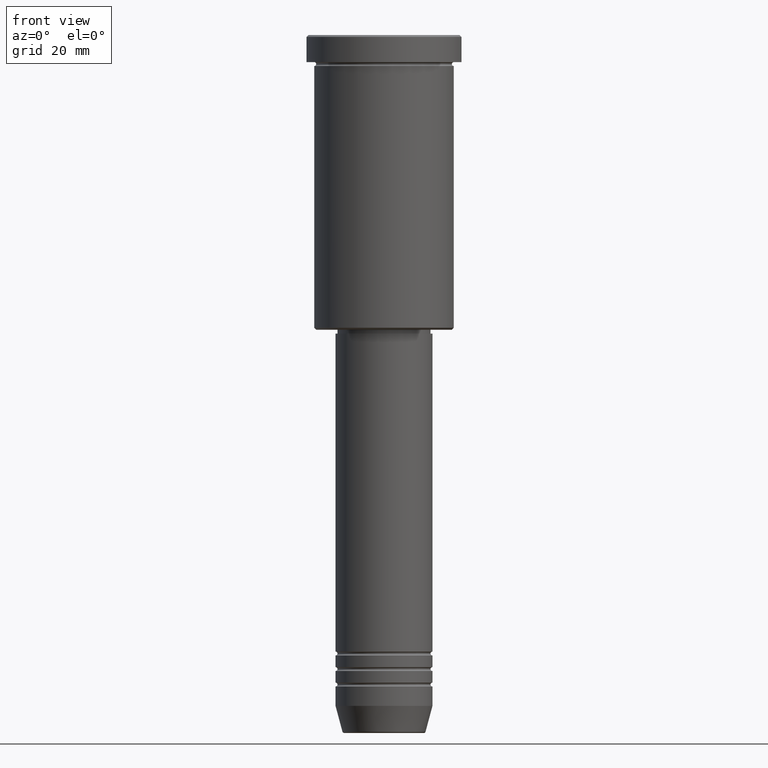
[diagram: clean part render]
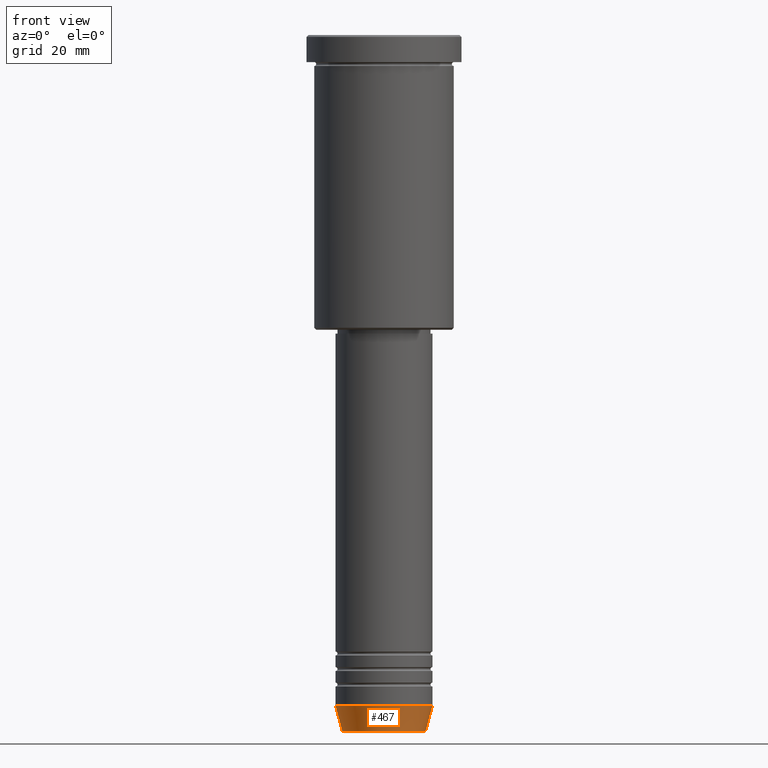
[diagram: same view with one face highlighted and labeled with its STEP entity id]
A machine part, front view. The second image highlights one B-rep face of the part: STEP entity #467.
In plain terms, the highlighted conical surface has half-angle 15 deg.
Its self-contained STEP definition (entity closure, byte-faithful):
#17 = CONICAL_SURFACE ( 'NONE', #539, 12.50000000000000000, 0.2617993877991500740 ) ;
#55 = DIRECTION ( 'NONE',  ( 1.000000000000000000, 0.000000000000000000, 0.000000000000000000 ) ) ;
#92 = LINE ( 'NONE', #649, #135 ) ;
#98 = DIRECTION ( 'NONE',  ( -0.2588190451025213501, 3.169619151431772337E-17, 0.9659258262890680902 ) ) ;
#121 = CARTESIAN_POINT ( 'NONE',  ( 0.000000000000000000, 0.000000000000000000, -173.0000000000000284 ) ) ;
#135 = VECTOR ( 'NONE', #914, 1000.000000000000000 ) ;
#184 = LINE ( 'NONE', #554, #852 ) ;
#196 = CIRCLE ( 'NONE', #747, 10.72365507213719127 ) ;
#207 = EDGE_CURVE ( 'NONE', #1014, #1076, #196, .T. ) ;
#231 = AXIS2_PLACEMENT_3D ( 'NONE', #1063, #236, #55 ) ;
#236 = DIRECTION ( 'NONE',  ( -0.000000000000000000, -0.000000000000000000, 1.000000000000000000 ) ) ;
#249 = CIRCLE ( 'NONE', #231, 12.50000000000000000 ) ;
#253 = EDGE_CURVE ( 'NONE', #881, #1155, #249, .T. ) ;
#393 = CARTESIAN_POINT ( 'NONE',  ( 0.000000000000000000, 0.000000000000000000, -179.6294095225512706 ) ) ;
#432 = ORIENTED_EDGE ( 'NONE', *, *, #207, .T. ) ;
#467 = ADVANCED_FACE ( 'NONE', ( #585 ), #17, .T. ) ;
#539 = AXIS2_PLACEMENT_3D ( 'NONE', #121, #1134, #680 ) ;
#554 = CARTESIAN_POINT ( 'NONE',  ( -12.50000000000000000, 1.530808498934191521E-15, -173.0000000000000284 ) ) ;
#574 = EDGE_LOOP ( 'NONE', ( #1017, #432, #989, #723 ) ) ;
#585 = FACE_OUTER_BOUND ( 'NONE', #574, .T. ) ;
#588 = EDGE_CURVE ( 'NONE', #1014, #881, #184, .T. ) ;
#649 = CARTESIAN_POINT ( 'NONE',  ( 12.50000000000000000, 0.000000000000000000, -173.0000000000000284 ) ) ;
#669 = CARTESIAN_POINT ( 'NONE',  ( -12.50000000000000000, 1.530808498934191521E-15, -173.0000000000000284 ) ) ;
#671 = DIRECTION ( 'NONE',  ( 1.000000000000000000, 0.000000000000000000, 0.000000000000000000 ) ) ;
#680 = DIRECTION ( 'NONE',  ( 1.000000000000000000, 0.000000000000000000, 0.000000000000000000 ) ) ;
#723 = ORIENTED_EDGE ( 'NONE', *, *, #253, .F. ) ;
#747 = AXIS2_PLACEMENT_3D ( 'NONE', #393, #1126, #671 ) ;
#852 = VECTOR ( 'NONE', #98, 1000.000000000000000 ) ;
#881 = VERTEX_POINT ( 'NONE', #669 ) ;
#914 = DIRECTION ( 'NONE',  ( 0.2588190451025213501, 0.000000000000000000, 0.9659258262890680902 ) ) ;
#989 = ORIENTED_EDGE ( 'NONE', *, *, #1058, .T. ) ;
#992 = CARTESIAN_POINT ( 'NONE',  ( -10.72365507213719127, 1.422038742429750516E-15, -179.6294095225512706 ) ) ;
#1014 = VERTEX_POINT ( 'NONE', #992 ) ;
#1017 = ORIENTED_EDGE ( 'NONE', *, *, #588, .F. ) ;
#1032 = CARTESIAN_POINT ( 'NONE',  ( 10.72365507213719127, 0.000000000000000000, -179.6294095225512706 ) ) ;
#1057 = CARTESIAN_POINT ( 'NONE',  ( 12.50000000000000000, 0.000000000000000000, -173.0000000000000284 ) ) ;
#1058 = EDGE_CURVE ( 'NONE', #1076, #1155, #92, .T. ) ;
#1063 = CARTESIAN_POINT ( 'NONE',  ( 0.000000000000000000, 0.000000000000000000, -173.0000000000000284 ) ) ;
#1076 = VERTEX_POINT ( 'NONE', #1032 ) ;
#1126 = DIRECTION ( 'NONE',  ( -0.000000000000000000, -0.000000000000000000, 1.000000000000000000 ) ) ;
#1134 = DIRECTION ( 'NONE',  ( -0.000000000000000000, -0.000000000000000000, 1.000000000000000000 ) ) ;
#1155 = VERTEX_POINT ( 'NONE', #1057 ) ;